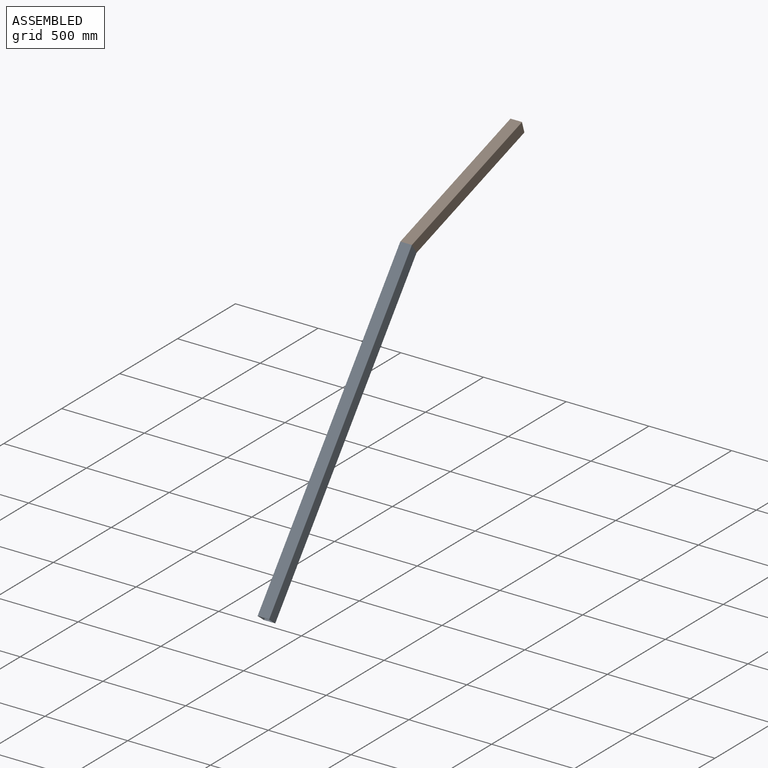
[diagram: assembled view]
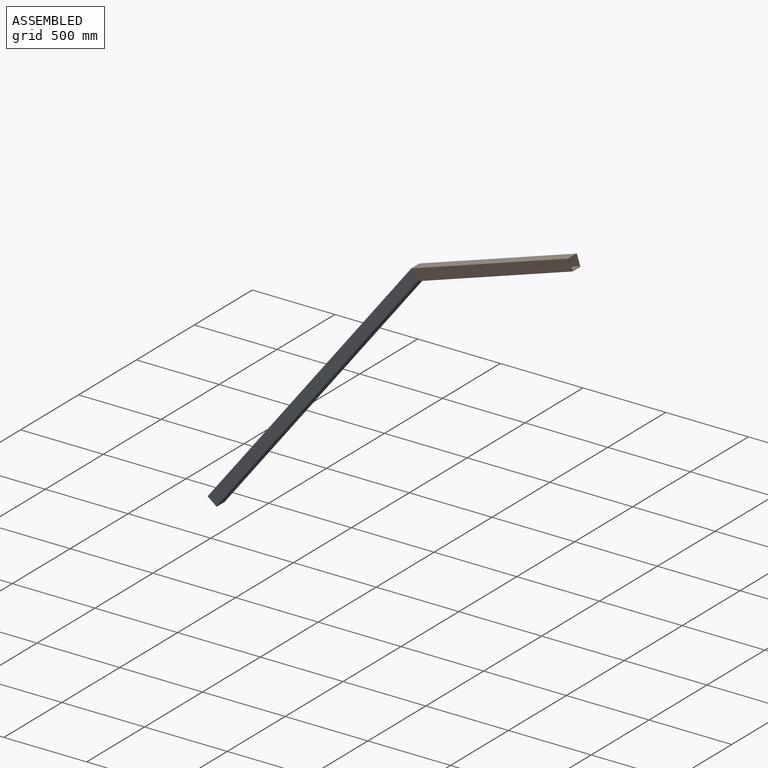
[diagram: assembled view, second angle]
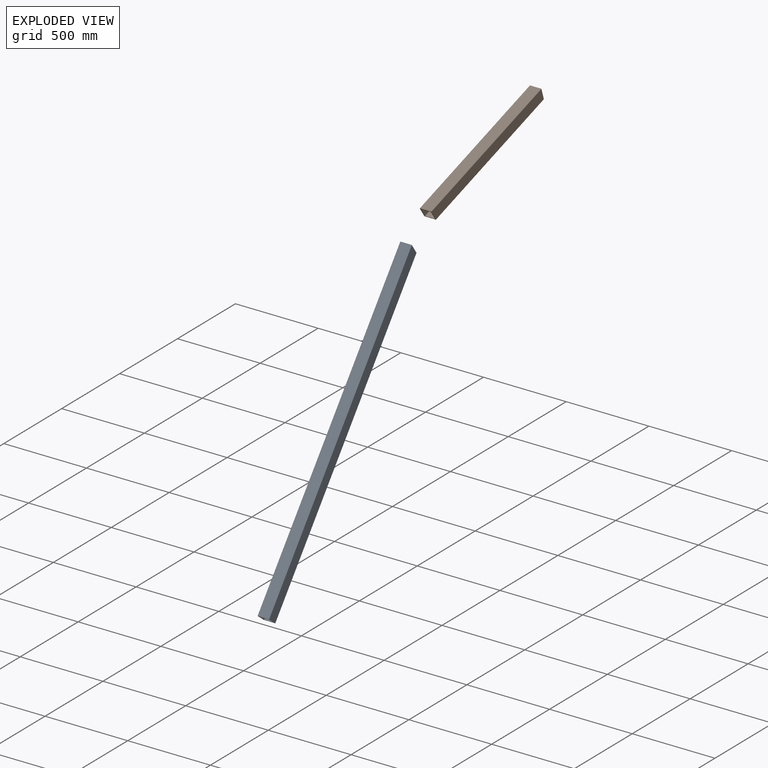
[diagram: exploded view]
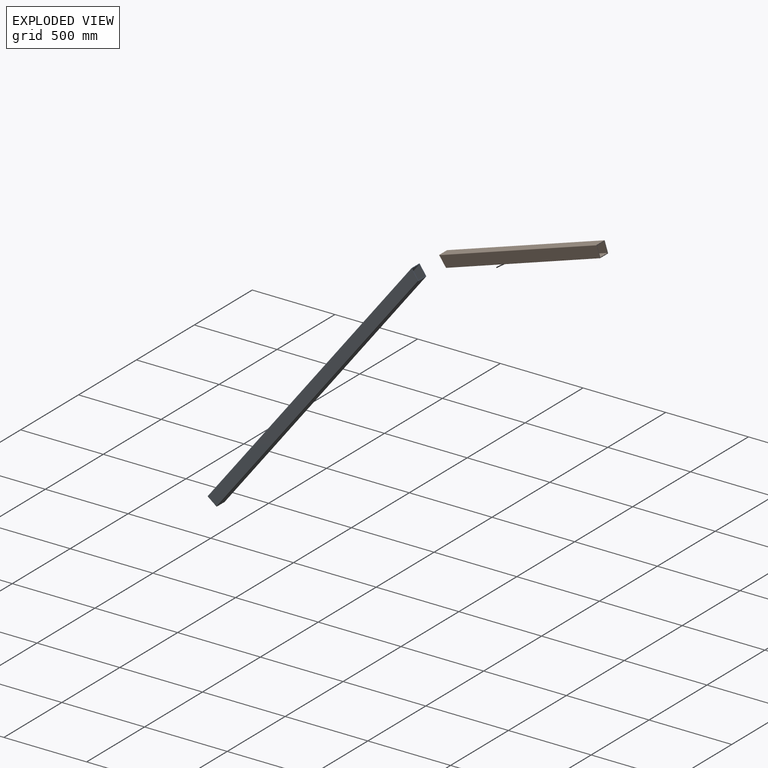
[diagram: exploded view, second angle]
ASSEMBLY  parts=2 mates=3
PART A: 14 faces, bbox 70x2000x70 mm
  f0: plane 1999.39x66mm, normal (1,0,0), area 131293.8mm2, adj f1,f2,f12,f13
  f1: cylinder r=2mm len=1979.21mm, axis (0,-1,0), area 6216.6mm2, adj f0,f10,f12,f13
  f2: cylinder r=2mm len=2000mm, axis (0,-1,0), area 6282.5mm2, adj f0,f11,f12,f13
  f3: cylinder r=2mm len=2000mm, axis (0,-1,0), area 6282.5mm2, adj f4,f11,f12,f13
  f4: plane 1999.39x66mm, normal (-1,0,0), area 131293.8mm2, adj f3,f9,f12,f13
  f5: plane 1998.78x62mm, normal (-1,0,0), area 123336.6mm2, adj f6,f8,f12,f13
  f6: plane 1979.82x62mm, normal (0,0,1), area 122749mm2, adj f5,f7,f12,f13
  f7: plane 1998.78x62mm, normal (1,0,0), area 123336.6mm2, adj f6,f8,f12,f13
  f8: plane 1998.78x62mm, normal (0,0,-1), area 123924.2mm2, adj f5,f7,f12,f13
  f9: cylinder r=2mm len=1979.21mm, axis (0,-1,0), area 6216.6mm2, adj f4,f10,f12,f13
  f10: plane 1978.6x66mm, normal (0,0,-1), area 130587.5mm2, adj f1,f9,f12,f13
  f11: plane 2000x66mm, normal (0,0,1), area 132000mm2, adj f2,f3,f12,f13
  f12: plane 70x70mm, normal (0,1,0), area 1052.6mm2, adj f0,f1,f2,f3,f4,f5,f6,f7
  f13: plane 70x70mm, normal (0,-0.96,-0.29), area 1100.7mm2, adj f0,f1,f2,f3,f4,f5,f6,f7
PART B: 14 faces, bbox 70x1000x70 mm
  f0: plane 999.39x66mm, normal (1,0,0), area 65293.8mm2, adj f1,f2,f12,f13
  f1: cylinder r=2mm len=979.21mm, axis (0,-1,0), area 3075.1mm2, adj f0,f10,f12,f13
  f2: cylinder r=2mm len=1000mm, axis (0,-1,0), area 3140.9mm2, adj f0,f11,f12,f13
  f3: cylinder r=2mm len=1000mm, axis (0,-1,0), area 3140.9mm2, adj f4,f11,f12,f13
  f4: plane 999.39x66mm, normal (-1,0,0), area 65293.8mm2, adj f3,f9,f12,f13
  f5: plane 998.78x62mm, normal (-1,0,0), area 61336.6mm2, adj f6,f8,f12,f13
  f6: plane 979.82x62mm, normal (0,0,1), area 60749mm2, adj f5,f7,f12,f13
  f7: plane 998.78x62mm, normal (1,0,0), area 61336.6mm2, adj f6,f8,f12,f13
  f8: plane 998.78x62mm, normal (0,0,-1), area 61924.2mm2, adj f5,f7,f12,f13
  f9: cylinder r=2mm len=979.21mm, axis (0,-1,0), area 3075.1mm2, adj f4,f10,f12,f13
  f10: plane 978.6x66mm, normal (0,0,-1), area 64587.5mm2, adj f1,f9,f12,f13
  f11: plane 1000x66mm, normal (0,0,1), area 66000mm2, adj f2,f3,f12,f13
  f12: plane 70x70mm, normal (0,1,0), area 1052.6mm2, adj f0,f1,f2,f3,f4,f5,f6,f7
  f13: plane 70x70mm, normal (0,-0.96,-0.29), area 1100.7mm2, adj f0,f1,f2,f3,f4,f5,f6,f7
PLACE A rot(axis=(0,0.44,-0.9),180deg) t=(112.72,-653.05,-198.46)mm
PLACE B rot(axis=(1,0,0),18deg) t=(42.72,-686.6,-221.92)mm
MATE planar B.f13 <-> A.f13  axis (0,-0.82,-0.57) through (77.72,-687.21,-185.33)mm
MATE fastened A.f13 <-> B.f13  axis (0,0.82,0.57) through (77.72,-687.21,-185.33)mm
MATE planar B.f0 <-> A.f4  axis (1,0,0) through (112.72,-216.73,-32.66)mm
